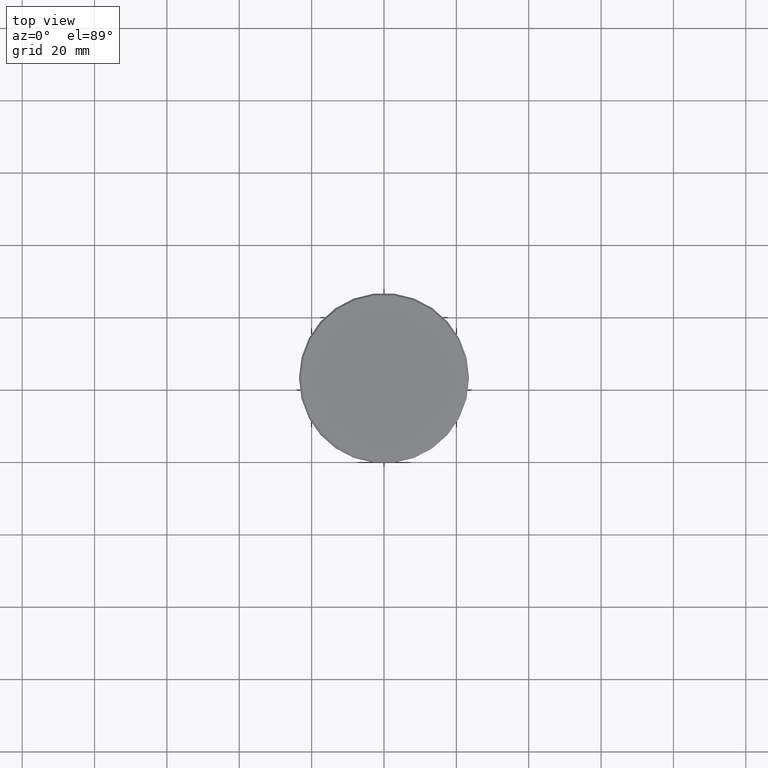
[diagram: clean part render]
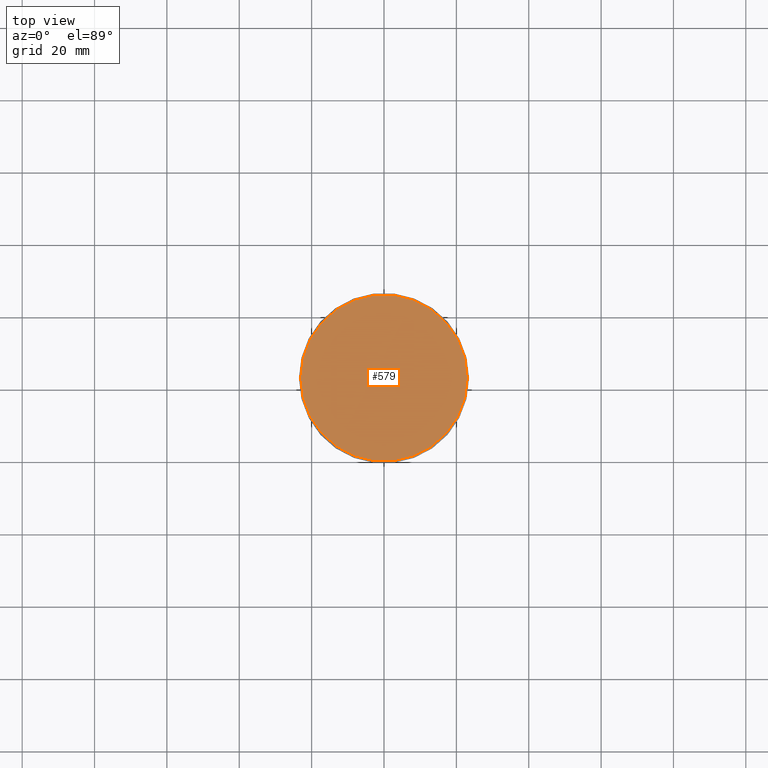
[diagram: same view with one face highlighted and labeled with its STEP entity id]
A machine part, top view. The second image highlights one B-rep face of the part: STEP entity #579.
In plain terms, the highlighted planar face has unit normal (0, -0, 1).
Its self-contained STEP definition (entity closure, byte-faithful):
#23 = ORIENTED_EDGE ( 'NONE', *, *, #28, .T. ) ;
#28 = EDGE_CURVE ( 'NONE', #460, #726, #137, .T. ) ;
#137 = CIRCLE ( 'NONE', #292, 22.99999999999996803 ) ;
#245 = CARTESIAN_POINT ( 'NONE',  ( 0.000000000000000000, 0.000000000000000000, 0.000000000000000000 ) ) ;
#292 = AXIS2_PLACEMENT_3D ( 'NONE', #955, #882, #1164 ) ;
#330 = FACE_OUTER_BOUND ( 'NONE', #695, .T. ) ;
#430 = CARTESIAN_POINT ( 'NONE',  ( -22.99999999999996803, 0.000000000000000000, 0.000000000000000000 ) ) ;
#460 = VERTEX_POINT ( 'NONE', #430 ) ;
#520 = AXIS2_PLACEMENT_3D ( 'NONE', #1115, #757, #661 ) ;
#579 = ADVANCED_FACE ( 'NONE', ( #330 ), #1155, .T. ) ;
#604 = DIRECTION ( 'NONE',  ( 0.000000000000000000, -0.000000000000000000, 1.000000000000000000 ) ) ;
#637 = ORIENTED_EDGE ( 'NONE', *, *, #857, .T. ) ;
#661 = DIRECTION ( 'NONE',  ( 1.000000000000000000, 0.000000000000000000, 0.000000000000000000 ) ) ;
#695 = EDGE_LOOP ( 'NONE', ( #23, #637 ) ) ;
#726 = VERTEX_POINT ( 'NONE', #892 ) ;
#757 = DIRECTION ( 'NONE',  ( -0.000000000000000000, -0.000000000000000000, 1.000000000000000000 ) ) ;
#806 = CIRCLE ( 'NONE', #520, 22.99999999999996803 ) ;
#857 = EDGE_CURVE ( 'NONE', #726, #460, #806, .T. ) ;
#875 = AXIS2_PLACEMENT_3D ( 'NONE', #245, #604, #1058 ) ;
#882 = DIRECTION ( 'NONE',  ( -0.000000000000000000, -0.000000000000000000, 1.000000000000000000 ) ) ;
#892 = CARTESIAN_POINT ( 'NONE',  ( 22.99999999999996803, 2.847303808017594561E-15, 0.000000000000000000 ) ) ;
#955 = CARTESIAN_POINT ( 'NONE',  ( 0.000000000000000000, 0.000000000000000000, 0.000000000000000000 ) ) ;
#1058 = DIRECTION ( 'NONE',  ( 1.000000000000000000, 0.000000000000000000, 0.000000000000000000 ) ) ;
#1115 = CARTESIAN_POINT ( 'NONE',  ( 0.000000000000000000, 0.000000000000000000, 0.000000000000000000 ) ) ;
#1155 = PLANE ( 'NONE',  #875 ) ;
#1164 = DIRECTION ( 'NONE',  ( 1.000000000000000000, 0.000000000000000000, 0.000000000000000000 ) ) ;